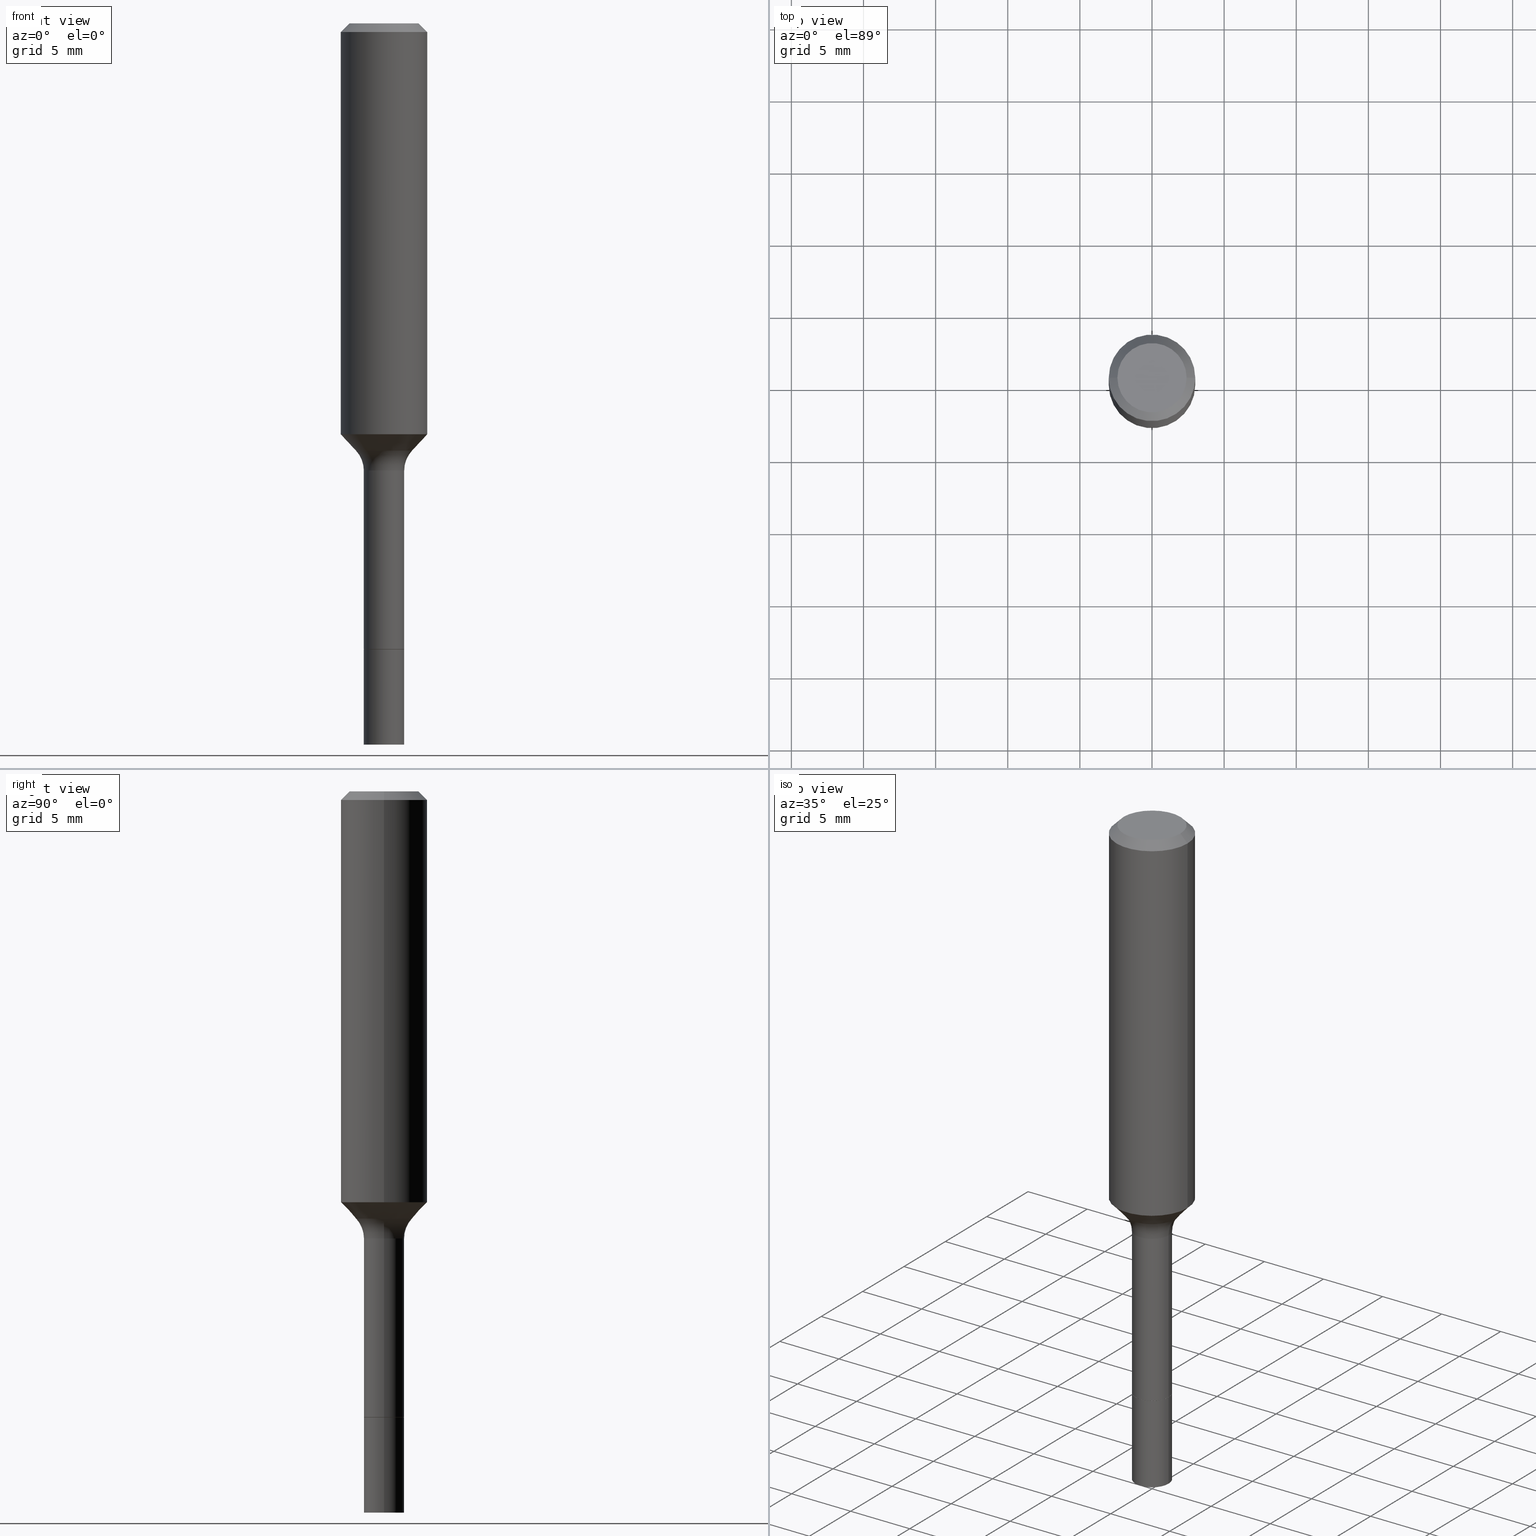
[diagram: canonical four-view strip — front | top / right | iso, engineering-drawing reading convention]
A machine part, canonical four-view strip (front | top / right | iso — engineering-drawing reading convention). The complete STEP part file that produces these views, byte-faithful:
ISO-10303-21;
HEADER;
FILE_DESCRIPTION (( 'STEP AP203' ),
    '1' );
FILE_NAME ('67073.STEP',
    '2025-04-01T15:27:35',
    ( '' ),
    ( '' ),
    'SwSTEP 2.0',
    'SolidWorks 2024',
    '' );
FILE_SCHEMA (( 'CONFIG_CONTROL_DESIGN' ));
ENDSEC;

DATA;
#1 = CARTESIAN_POINT ( 'NONE',  ( 0.000000000000000000, 0.000000000000000000, 0.000000000000000000 ) ) ;
#2 = AXIS2_PLACEMENT_3D ( 'NONE', #258, #273, #358 ) ;
#3 = CALENDAR_DATE ( 2025, 1, 4 ) ;
#4 = EDGE_CURVE ( 'NONE', #175, #490, #143, .T. ) ;
#5 = CARTESIAN_POINT ( 'NONE',  ( 0.1350999999999999424, -5.204751231813473477E-15, -1.220499999999999918 ) ) ;
#6 = VERTEX_POINT ( 'NONE', #434 ) ;
#7 = APPROVAL_DATE_TIME ( #371, #493 ) ;
#8 = FACE_OUTER_BOUND ( 'NONE', #246, .T. ) ;
#9 = ORIENTED_EDGE ( 'NONE', *, *, #435, .T. ) ;
#10 = PERSON_AND_ORGANIZATION ( #228, #318 ) ;
#11 = CARTESIAN_POINT ( 'NONE',  ( -0.1180999999999999966, -1.159805774525281826E-15, -0.02362000000000014435 ) ) ;
#12 = EDGE_LOOP ( 'NONE', ( #417, #156, #494, #508 ) ) ;
#13 = DIRECTION ( 'NONE',  ( -2.445468806185136877E-29, 3.491481338843145188E-15, 1.000000000000000000 ) ) ;
#14 = VECTOR ( 'NONE', #181, 39.37007874015748854 ) ;
#15 = ADVANCED_FACE ( 'NONE', ( #431 ), #340, .T. ) ;
#16 = ORIENTED_EDGE ( 'NONE', *, *, #489, .F. ) ;
#17 = DIRECTION ( 'NONE',  ( 1.000000000000000000, -6.982962677686269077E-15, 0.000000000000000000 ) ) ;
#18 = ORIENTED_EDGE ( 'NONE', *, *, #392, .T. ) ;
#19 = CARTESIAN_POINT ( 'NONE',  ( 0.07659170387046630724, -4.605695219823535710E-15, -1.165940131194999951 ) ) ;
#20 = APPLICATION_CONTEXT ( 'configuration controlled 3d designs of mechanical parts and assemblies' ) ;
#21 = VERTEX_POINT ( 'NONE', #271 ) ;
#22 = LINE ( 'NONE', #220, #244 ) ;
#23 = CIRCLE ( 'NONE', #395, 0.1180999999999999966 ) ;
#24 = CYLINDRICAL_SURFACE ( 'NONE', #92, 0.05509999999999998233 ) ;
#25 = CARTESIAN_POINT ( 'NONE',  ( 0.05510000000000006559, -6.349957110954028728E-15, -1.708500000000000130 ) ) ;
#26 = CARTESIAN_POINT ( 'NONE',  ( 0.1181000000000001354, -4.740132593927196007E-15, -1.121427933219249384 ) ) ;
#27 = DIRECTION ( 'NONE',  ( -2.445468806185136597E-29, 3.491481338843145583E-15, 1.000000000000000000 ) ) ;
#28 = AXIS2_PLACEMENT_3D ( 'NONE', #495, #363, #126 ) ;
#29 = ORIENTED_EDGE ( 'NONE', *, *, #359, .T. ) ;
#30 = EDGE_CURVE ( 'NONE', #211, #6, #63, .T. ) ;
#31 = CARTESIAN_POINT ( 'NONE',  ( 0.05510000000000012804, -7.257742259053245293E-15, -1.968500000000000139 ) ) ;
#32 = DIRECTION ( 'NONE',  ( -2.445468806185136597E-29, 3.491481338843145583E-15, 1.000000000000000000 ) ) ;
#33 = CIRCLE ( 'NONE', #64, 0.09447999999999998066 ) ;
#34 = PERSON_AND_ORGANIZATION ( #228, #318 ) ;
#35 = CARTESIAN_POINT ( 'NONE',  ( -0.05460000000000000270, -5.577239533688498991E-15, -1.708499999999999908 ) ) ;
#36 = APPROVAL_DATE_TIME ( #393, #128 ) ;
#37 = AXIS2_PLACEMENT_3D ( 'NONE', #241, #279, #251 ) ;
#38 = VECTOR ( 'NONE', #430, 39.37007874015748143 ) ;
#39 = ORIENTED_EDGE ( 'NONE', *, *, #208, .F. ) ;
#40 = AXIS2_PLACEMENT_3D ( 'NONE', #5, #237, #283 ) ;
#41 = EDGE_CURVE ( 'NONE', #169, #172, #444, .T. ) ;
#42 = LINE ( 'NONE', #409, #455 ) ;
#43 = CONICAL_SURFACE ( 'NONE', #451, 0.05460000000000000270, 0.7853981633978239785 ) ;
#44 = APPROVAL_STATUS ( 'not_yet_approved' ) ;
#45 = DIRECTION ( 'NONE',  ( 1.000000000000000000, -6.982962677686266711E-15, 0.000000000000000000 ) ) ;
#46 = ORIENTED_EDGE ( 'NONE', *, *, #467, .F. ) ;
#47 = EDGE_CURVE ( 'NONE', #211, #483, #472, .T. ) ;
#48 = DIRECTION ( 'NONE',  ( 0.7071067811865460184, -7.319954787623251312E-15, -0.7071067811865490160 ) ) ;
#49 = EDGE_LOOP ( 'NONE', ( #121, #203 ) ) ;
#50 = CALENDAR_DATE ( 2025, 1, 4 ) ;
#51 = FACE_OUTER_BOUND ( 'NONE', #94, .T. ) ;
#52 = DIRECTION ( 'NONE',  ( -2.445468806185136597E-29, 3.491481338843145583E-15, 1.000000000000000000 ) ) ;
#53 = AXIS2_PLACEMENT_3D ( 'NONE', #1, #479, #113 ) ;
#54 = ORIENTED_EDGE ( 'NONE', *, *, #41, .F. ) ;
#55 = CARTESIAN_POINT ( 'NONE',  ( 2.742417029072343247E-29, -3.915444701692446956E-15, -1.121427933219249384 ) ) ;
#56 = VERTEX_POINT ( 'NONE', #26 ) ;
#57 = ADVANCED_FACE ( 'NONE', ( #60 ), #381, .T. ) ;
#58 = CIRCLE ( 'NONE', #360, 0.05510000000000012804 ) ;
#59 = DIRECTION ( 'NONE',  ( -2.445468806185136597E-29, 3.491481338843145583E-15, 1.000000000000000000 ) ) ;
#60 = FACE_OUTER_BOUND ( 'NONE', #454, .T. ) ;
#61 = ADVANCED_FACE ( 'NONE', ( #378 ), #24, .T. ) ;
#62 = LINE ( 'NONE', #140, #190 ) ;
#63 = CIRCLE ( 'NONE', #147, 0.07659170387046630724 ) ;
#64 = AXIS2_PLACEMENT_3D ( 'NONE', #350, #73, #278 ) ;
#65 = EDGE_LOOP ( 'NONE', ( #199, #85, #426, #420 ) ) ;
#66 = MANIFOLD_SOLID_BREP ( 'Body-Move/Copy2[1]', #263 ) ;
#67 = LINE ( 'NONE', #380, #486 ) ;
#68 = LOCAL_TIME ( 11, 27, 35.00000000000000000, #327 ) ;
#69 = VERTEX_POINT ( 'NONE', #261 ) ;
#70 = DIRECTION ( 'NONE',  ( -1.000000000000000000, 7.105427357601001859E-15, 0.000000000000000000 ) ) ;
#71 = CIRCLE ( 'NONE', #503, 0.1180999999999999966 ) ;
#72 = DIRECTION ( 'NONE',  ( 1.000000000000000000, -6.982962677686265133E-15, 0.000000000000000000 ) ) ;
#73 = DIRECTION ( 'NONE',  ( -2.445468806185136597E-29, 3.491481338843145583E-15, 1.000000000000000000 ) ) ;
#74 = ADVANCED_FACE ( 'NONE', ( #268 ), #349, .F. ) ;
#75 = FACE_OUTER_BOUND ( 'NONE', #461, .T. ) ;
#76 = APPLICATION_PROTOCOL_DEFINITION ( 'international standard', 'config_control_design', 1994, #227 ) ;
#77 = DIRECTION ( 'NONE',  ( -2.445468806185136597E-29, 3.491481338843145583E-15, 1.000000000000000000 ) ) ;
#78 = CONICAL_SURFACE ( 'NONE', #382, 0.07659170387046630724, 0.7504915783575636379 ) ;
#79 = ORIENTED_EDGE ( 'NONE', *, *, #312, .T. ) ;
#80 = DIRECTION ( 'NONE',  ( 2.438088387897960049E-29, -3.491481338843145188E-15, -1.000000000000000000 ) ) ;
#81 = CC_DESIGN_PERSON_AND_ORGANIZATION_ASSIGNMENT ( #413, #125, ( #86 ) ) ;
#82 = AXIS2_PLACEMENT_3D ( 'NONE', #151, #311, #160 ) ;
#83 = APPROVAL_DATE_TIME ( #361, #180 ) ;
#84 = DIRECTION ( 'NONE',  ( 1.000000000000000000, -6.982962677686258822E-15, 0.000000000000000000 ) ) ;
#85 = ORIENTED_EDGE ( 'NONE', *, *, #259, .T. ) ;
#86 = PRODUCT_DEFINITION_FORMATION_WITH_SPECIFIED_SOURCE ( 'ANY', '', #304, .NOT_KNOWN. ) ;
#87 = COORDINATED_UNIVERSAL_TIME_OFFSET ( 5, 0, .BEHIND. ) ;
#88 = DIRECTION ( 'NONE',  ( -1.000000000000000000, 6.982962677686265922E-15, -4.876176775795935793E-29 ) ) ;
#89 = ORIENTED_EDGE ( 'NONE', *, *, #176, .F. ) ;
#90 = DIRECTION ( 'NONE',  ( -2.445468806185136877E-29, 3.491481338843145188E-15, 1.000000000000000000 ) ) ;
#91 = ORIENTED_EDGE ( 'NONE', *, *, #4, .T. ) ;
#92 = AXIS2_PLACEMENT_3D ( 'NONE', #308, #185, #342 ) ;
#93 = DIRECTION ( 'NONE',  ( -2.445468806185136597E-29, 3.491481338843145583E-15, 1.000000000000000000 ) ) ;
#94 = EDGE_LOOP ( 'NONE', ( #179, #91, #375, #448 ) ) ;
#95 = DIRECTION ( 'NONE',  ( 1.000000000000000000, -6.982962677686263555E-15, 0.000000000000000000 ) ) ;
#96 = CIRCLE ( 'NONE', #194, 0.05510000000000000314 ) ;
#97 = ORIENTED_EDGE ( 'NONE', *, *, #498, .F. ) ;
#98 = DIRECTION ( 'NONE',  ( -0.7071067811865460184, 2.468850131082241283E-15, -0.7071067811865490160 ) ) ;
#99 = ORIENTED_EDGE ( 'NONE', *, *, #498, .T. ) ;
#100 = AXIS2_PLACEMENT_3D ( 'NONE', #178, #198, #166 ) ;
#101 = DIRECTION ( 'NONE',  ( 0.7071067811868130271, -2.468850131085038979E-15, 0.7071067811862817853 ) ) ;
#102 = EDGE_LOOP ( 'NONE', ( #39, #516 ) ) ;
#103 = DIRECTION ( 'NONE',  ( -2.445468806185136597E-29, 3.491481338843145583E-15, 1.000000000000000000 ) ) ;
#104 = AXIS2_PLACEMENT_3D ( 'NONE', #260, #425, #216 ) ;
#105 = ORIENTED_EDGE ( 'NONE', *, *, #429, .T. ) ;
#106 = CARTESIAN_POINT ( 'NONE',  ( 4.178083455367305580E-29, -5.965195867413513564E-15, -1.708499999999999908 ) ) ;
#107 = DIRECTION ( 'NONE',  ( 1.000000000000000000, -6.982962677686266711E-15, 4.876176775795935793E-29 ) ) ;
#108 = CONICAL_SURFACE ( 'NONE', #428, 0.1180999999999999966, 0.7853981633974461696 ) ;
#109 = LENGTH_MEASURE_WITH_UNIT ( LENGTH_MEASURE( 0.02539999999999999897 ), #115 );
#110 = DIRECTION ( 'NONE',  ( -2.445468806185136597E-29, 3.491481338843145583E-15, 1.000000000000000000 ) ) ;
#111 = EDGE_CURVE ( 'NONE', #291, #187, #465, .T. ) ;
#112 = LOCAL_TIME ( 11, 27, 35.00000000000000000, #517 ) ;
#113 = DIRECTION ( 'NONE',  ( 1.000000000000000000, 0.000000000000000000, 0.000000000000000000 ) ) ;
#114 = ADVANCED_FACE ( 'NONE', ( #391 ), #398, .T. ) ;
#115 =( LENGTH_UNIT ( ) NAMED_UNIT ( * ) SI_UNIT ( $, .METRE. ) );
#116 = CIRCLE ( 'NONE', #104, 0.05510000000000000314 ) ;
#117 = DIRECTION ( 'NONE',  ( 2.445468806185136597E-29, -3.491481338843145583E-15, -1.000000000000000000 ) ) ;
#118 = PERSON_AND_ORGANIZATION ( #228, #318 ) ;
#119 = FACE_OUTER_BOUND ( 'NONE', #65, .T. ) ;
#120 = AXIS2_PLACEMENT_3D ( 'NONE', #450, #117, #331 ) ;
#121 = ORIENTED_EDGE ( 'NONE', *, *, #514, .T. ) ;
#122 = CARTESIAN_POINT ( 'NONE',  ( 0.05510000000000000314, -6.349957110954028728E-15, -1.708500000000000130 ) ) ;
#123 = EDGE_CURVE ( 'NONE', #69, #172, #275, .T. ) ;
#124 = CIRCLE ( 'NONE', #347, 0.05509999999999994763 ) ;
#125 = PERSON_AND_ORGANIZATION_ROLE ( 'design_supplier' ) ;
#126 = DIRECTION ( 'NONE',  ( 1.000000000000000000, -6.982962677686263555E-15, 0.000000000000000000 ) ) ;
#127 = ORIENTED_EDGE ( 'NONE', *, *, #226, .T. ) ;
#128 = APPROVAL ( #192, 'UNSPECIFIED' ) ;
#129 = DIRECTION ( 'NONE',  ( -2.438088387897960049E-29, 3.491481338843145188E-15, 1.000000000000000000 ) ) ;
#130 = ORIENTED_EDGE ( 'NONE', *, *, #317, .F. ) ;
#131 = AXIS2_PLACEMENT_3D ( 'NONE', #368, #129, #289 ) ;
#132 = ADVANCED_FACE ( 'NONE', ( #75 ), #155, .T. ) ;
#133 = DIRECTION ( 'NONE',  ( 7.105427357601001859E-15, 1.000000000000000000, -3.491481338843145583E-15 ) ) ;
#134 = VERTEX_POINT ( 'NONE', #164 ) ;
#135 = DESIGN_CONTEXT ( 'detailed design', #20, 'design' ) ;
#136 = DIRECTION ( 'NONE',  ( -2.445468806185136597E-29, 3.491481338843145583E-15, 1.000000000000000000 ) ) ;
#137 = CARTESIAN_POINT ( 'NONE',  ( -0.07659170387046630724, -3.526641422229185423E-15, -1.165940131194999951 ) ) ;
#138 = LINE ( 'NONE', #257, #264 ) ;
#139 = DIRECTION ( 'NONE',  ( -0.6819983600624998088, 7.399397606724291309E-15, 0.7313537016191691276 ) ) ;
#140 = CARTESIAN_POINT ( 'NONE',  ( -0.1180999999999999966, 7.422191030112725094E-16, -0.02362000000000014435 ) ) ;
#141 = ORIENTED_EDGE ( 'NONE', *, *, #369, .F. ) ;
#142 = FACE_OUTER_BOUND ( 'NONE', #145, .T. ) ;
#143 = CIRCLE ( 'NONE', #285, 0.05510000000000012804 ) ;
#144 = AXIS2_PLACEMENT_3D ( 'NONE', #432, #133, #70 ) ;
#145 = EDGE_LOOP ( 'NONE', ( #16, #332, #242, #18 ) ) ;
#146 = ORIENTED_EDGE ( 'NONE', *, *, #30, .F. ) ;
#147 = AXIS2_PLACEMENT_3D ( 'NONE', #389, #32, #423 ) ;
#148 = PRODUCT_DEFINITION_SHAPE ( 'NONE', 'NONE',  #460 ) ;
#149 = CALENDAR_DATE ( 2025, 1, 4 ) ;
#150 = DIRECTION ( 'NONE',  ( 1.000000000000000000, -6.982962677686265133E-15, 0.000000000000000000 ) ) ;
#151 = CARTESIAN_POINT ( 'NONE',  ( 4.813905344975441835E-29, -6.872981015512731707E-15, -1.968500000000000139 ) ) ;
#152 = TOROIDAL_SURFACE ( 'NONE', #253, 0.1350999999999999424, 0.08000000000000001554 ) ;
#153 = ADVANCED_BREP_SHAPE_REPRESENTATION ( '67073', ( #66, #402, #53 ), #513 ) ;
#154 = SECURITY_CLASSIFICATION ( '', '', #161 ) ;
#155 = CYLINDRICAL_SURFACE ( 'NONE', #188, 0.1181000000000000660 ) ;
#156 = ORIENTED_EDGE ( 'NONE', *, *, #424, .T. ) ;
#157 = PRODUCT_RELATED_PRODUCT_CATEGORY ( 'detail', '', ( #304 ) ) ;
#158 = APPROVAL_ROLE ( '' ) ;
#159 = CARTESIAN_POINT ( 'NONE',  ( 7.545787641473140628E-46, -1.077338491108201769E-31, -3.085620075131671975E-17 ) ) ;
#160 = DIRECTION ( 'NONE',  ( -1.000000000000000000, 6.982962677686265922E-15, -4.876176775795935793E-29 ) ) ;
#161 = SECURITY_CLASSIFICATION_LEVEL ( 'unclassified' ) ;
#162 = CYLINDRICAL_SURFACE ( 'NONE', #222, 0.05510000000000006559 ) ;
#163 = LOCAL_TIME ( 11, 27, 35.00000000000000000, #196 ) ;
#164 = CARTESIAN_POINT ( 'NONE',  ( -0.09447999999999998066, 7.009847083995354710E-16, -3.085620075132147757E-17 ) ) ;
#165 = EDGE_LOOP ( 'NONE', ( #284, #506 ) ) ;
#166 = DIRECTION ( 'NONE',  ( 1.000000000000000000, -6.982962677686261977E-15, 0.000000000000000000 ) ) ;
#167 = EDGE_CURVE ( 'NONE', #510, #69, #229, .T. ) ;
#168 = AXIS2_PLACEMENT_3D ( 'NONE', #213, #295, #463 ) ;
#169 = VERTEX_POINT ( 'NONE', #233 ) ;
#170 = CALENDAR_DATE ( 2025, 1, 4 ) ;
#171 = CYLINDRICAL_SURFACE ( 'NONE', #480, 0.05510000000000006559 ) ;
#172 = VERTEX_POINT ( 'NONE', #230 ) ;
#173 = AXIS2_PLACEMENT_3D ( 'NONE', #55, #343, #339 ) ;
#174 = CARTESIAN_POINT ( 'NONE',  ( 2.742417029072343247E-29, -3.915444701692446956E-15, -1.121427933219249384 ) ) ;
#175 = VERTEX_POINT ( 'NONE', #277 ) ;
#176 = EDGE_CURVE ( 'NONE', #300, #21, #71, .T. ) ;
#177 = AXIS2_PLACEMENT_3D ( 'NONE', #344, #221, #72 ) ;
#178 = CARTESIAN_POINT ( 'NONE',  ( 2.851270220716778580E-29, -4.070858210275671756E-15, -1.165940131194999951 ) ) ;
#179 = ORIENTED_EDGE ( 'NONE', *, *, #424, .F. ) ;
#180 = APPROVAL ( #449, 'UNSPECIFIED' ) ;
#181 = DIRECTION ( 'NONE',  ( 0.6819983600624998088, -2.208861293262489214E-15, 0.7313537016191691276 ) ) ;
#182 = ORIENTED_EDGE ( 'NONE', *, *, #412, .T. ) ;
#183 = DIRECTION ( 'NONE',  ( -2.445468806185136877E-29, 3.491481338843145188E-15, 1.000000000000000000 ) ) ;
#184 = CC_DESIGN_APPROVAL ( #128, ( #460 ) ) ;
#185 = DIRECTION ( 'NONE',  ( -2.445468806185136597E-29, 3.491481338843145583E-15, 1.000000000000000000 ) ) ;
#186 = FACE_OUTER_BOUND ( 'NONE', #410, .T. ) ;
#187 = VERTEX_POINT ( 'NONE', #362 ) ;
#188 = AXIS2_PLACEMENT_3D ( 'NONE', #231, #315, #482 ) ;
#189 = CARTESIAN_POINT ( 'NONE',  ( 4.176860720964213339E-29, -5.963450126744093638E-15, -1.708000000000000185 ) ) ;
#190 = VECTOR ( 'NONE', #98, 39.37007874015748143 ) ;
#191 = CARTESIAN_POINT ( 'NONE',  ( 0.000000000000000000, 0.000000000000000000, 0.000000000000000000 ) ) ;
#192 = APPROVAL_STATUS ( 'not_yet_approved' ) ;
#193 = AXIS2_PLACEMENT_3D ( 'NONE', #281, #93, #500 ) ;
#194 = AXIS2_PLACEMENT_3D ( 'NONE', #223, #511, #468 ) ;
#195 = ORIENTED_EDGE ( 'NONE', *, *, #239, .F. ) ;
#196 = COORDINATED_UNIVERSAL_TIME_OFFSET ( 5, 0, .BEHIND. ) ;
#197 = AXIS2_PLACEMENT_3D ( 'NONE', #191, #385, #107 ) ;
#198 = DIRECTION ( 'NONE',  ( -2.445468806185136597E-29, 3.491481338843145583E-15, 1.000000000000000000 ) ) ;
#199 = ORIENTED_EDGE ( 'NONE', *, *, #200, .F. ) ;
#200 = EDGE_CURVE ( 'NONE', #501, #134, #282, .T. ) ;
#201 = SHAPE_DEFINITION_REPRESENTATION ( #148, #153 ) ;
#202 = DIRECTION ( 'NONE',  ( 2.445468806185136597E-29, -3.491481338843145583E-15, -1.000000000000000000 ) ) ;
#203 = ORIENTED_EDGE ( 'NONE', *, *, #200, .T. ) ;
#204 = CC_DESIGN_DATE_AND_TIME_ASSIGNMENT ( #456, #484, ( #460 ) ) ;
#205 = FACE_OUTER_BOUND ( 'NONE', #505, .T. ) ;
#206 = ORIENTED_EDGE ( 'NONE', *, *, #412, .F. ) ;
#207 = DIRECTION ( 'NONE',  ( -2.445468806185136597E-29, 3.491481338843145583E-15, 1.000000000000000000 ) ) ;
#208 = EDGE_CURVE ( 'NONE', #490, #175, #58, .T. ) ;
#209 = EDGE_LOOP ( 'NONE', ( #249, #452, #99, #130 ) ) ;
#210 = FACE_OUTER_BOUND ( 'NONE', #466, .T. ) ;
#211 = VERTEX_POINT ( 'NONE', #405 ) ;
#212 = LINE ( 'NONE', #19, #14 ) ;
#213 = CARTESIAN_POINT ( 'NONE',  ( 3.772893820736570314E-46, -5.386692455541008845E-32, -1.542810037565835988E-17 ) ) ;
#214 = VECTOR ( 'NONE', #438, 39.37007874015748854 ) ;
#215 = VERTEX_POINT ( 'NONE', #443 ) ;
#216 = DIRECTION ( 'NONE',  ( 1.000000000000000000, -6.982962677686274599E-15, 0.000000000000000000 ) ) ;
#217 = APPROVAL_PERSON_ORGANIZATION ( #118, #180, #158 ) ;
#218 = EDGE_LOOP ( 'NONE', ( #442, #127, #364, #206 ) ) ;
#219 = CC_DESIGN_SECURITY_CLASSIFICATION ( #154, ( #86 ) ) ;
#220 = CARTESIAN_POINT ( 'NONE',  ( 0.05460000000000000270, -6.346465629615183354E-15, -1.708499999999999908 ) ) ;
#221 = DIRECTION ( 'NONE',  ( -2.445468806185136597E-29, 3.491481338843145583E-15, 1.000000000000000000 ) ) ;
#222 = AXIS2_PLACEMENT_3D ( 'NONE', #492, #321, #488 ) ;
#223 = CARTESIAN_POINT ( 'NONE',  ( 4.178083455367306140E-29, -5.965195867413514353E-15, -1.708500000000000130 ) ) ;
#224 = DIRECTION ( 'NONE',  ( 1.000000000000000000, -6.982962677686258822E-15, 0.000000000000000000 ) ) ;
#225 = ADVANCED_FACE ( 'NONE', ( #366 ), #446, .F. ) ;
#226 = EDGE_CURVE ( 'NONE', #172, #215, #374, .T. ) ;
#227 = APPLICATION_CONTEXT ( 'configuration controlled 3d designs of mechanical parts and assemblies' ) ;
#228 = PERSON ( 'UNSPECIFIED', 'UNSPECIFIED', 'UNSPECIFIED', ('UNSPECIFIED'), ('UNSPECIFIED'), ('UNSPECIFIED') ) ;
#229 = CIRCLE ( 'NONE', #309, 0.05460000000000000270 ) ;
#230 = CARTESIAN_POINT ( 'NONE',  ( -0.05510000000000000314, -4.720892502997260862E-15, -1.708000000000000185 ) ) ;
#231 = CARTESIAN_POINT ( 'NONE',  ( 0.000000000000000000, 0.000000000000000000, 0.000000000000000000 ) ) ;
#232 = PERSON_AND_ORGANIZATION_ROLE ( 'design_owner' ) ;
#233 = CARTESIAN_POINT ( 'NONE',  ( 0.05510000000000000314, -6.348211370284607224E-15, -1.708000000000000185 ) ) ;
#234 = CIRCLE ( 'NONE', #144, 0.08000000000000002942 ) ;
#235 = MECHANICAL_CONTEXT ( 'NONE', #227, 'mechanical' ) ;
#236 = ORIENTED_EDGE ( 'NONE', *, *, #514, .F. ) ;
#237 = DIRECTION ( 'NONE',  ( -6.982962677686266711E-15, -1.000000000000000000, 3.491481338843145583E-15 ) ) ;
#238 = CIRCLE ( 'NONE', #313, 0.1181000000000001354 ) ;
#239 = EDGE_CURVE ( 'NONE', #6, #497, #474, .T. ) ;
#240 = PERSON_AND_ORGANIZATION ( #228, #318 ) ;
#241 = CARTESIAN_POINT ( 'NONE',  ( 0.000000000000000000, 0.000000000000000000, 0.000000000000000000 ) ) ;
#242 = ORIENTED_EDGE ( 'NONE', *, *, #239, .T. ) ;
#243 = ADVANCED_FACE ( 'NONE', ( #8 ), #269, .T. ) ;
#244 = VECTOR ( 'NONE', #101, 39.37007874015748854 ) ;
#245 = CARTESIAN_POINT ( 'NONE',  ( 4.178083455367306140E-29, -5.965195867413514353E-15, -1.708500000000000130 ) ) ;
#246 = EDGE_LOOP ( 'NONE', ( #305, #236, #334, #288 ) ) ;
#247 = CARTESIAN_POINT ( 'NONE',  ( -0.05509999999999998233, 3.915090474038150768E-16, -2.710333234730452079E-30 ) ) ;
#248 = CIRCLE ( 'NONE', #28, 0.05509999999999994763 ) ;
#249 = ORIENTED_EDGE ( 'NONE', *, *, #47, .F. ) ;
#250 = DATE_TIME_ROLE ( 'classification_date' ) ;
#251 = DIRECTION ( 'NONE',  ( 1.000000000000000000, -6.982962677686266711E-15, 4.876176775795936353E-29 ) ) ;
#252 = ORIENTED_EDGE ( 'NONE', *, *, #317, .T. ) ;
#253 = AXIS2_PLACEMENT_3D ( 'NONE', #504, #136, #296 ) ;
#254 = CARTESIAN_POINT ( 'NONE',  ( 2.984694677948959472E-29, -4.261352974058059028E-15, -1.220499999999999918 ) ) ;
#255 = ORIENTED_EDGE ( 'NONE', *, *, #447, .T. ) ;
#256 = UNCERTAINTY_MEASURE_WITH_UNIT (LENGTH_MEASURE( 1.000000000000000082E-05 ), #272, 'distance_accuracy_value', 'NONE');
#257 = CARTESIAN_POINT ( 'NONE',  ( -0.1181000000000000660, 8.391509709326787887E-16, -5.809262341591047287E-30 ) ) ;
#258 = CARTESIAN_POINT ( 'NONE',  ( 4.178083455367306140E-29, -5.965195867413514353E-15, -1.708500000000000130 ) ) ;
#259 = EDGE_CURVE ( 'NONE', #501, #21, #42, .T. ) ;
#260 = CARTESIAN_POINT ( 'NONE',  ( 4.176860720964213339E-29, -5.963450126744093638E-15, -1.708000000000000185 ) ) ;
#261 = CARTESIAN_POINT ( 'NONE',  ( -0.05460000000000000270, -5.574590306514388579E-15, -1.708499999999999908 ) ) ;
#262 = LINE ( 'NONE', #294, #441 ) ;
#263 = CLOSED_SHELL ( 'NONE', ( #325, #114, #301, #225 ) ) ;
#264 = VECTOR ( 'NONE', #459, 39.37007874015748143 ) ;
#265 = ORIENTED_EDGE ( 'NONE', *, *, #123, .F. ) ;
#266 = DIRECTION ( 'NONE',  ( 1.000000000000000000, -6.982962677686266711E-15, 0.000000000000000000 ) ) ;
#267 = ADVANCED_FACE ( 'NONE', ( #205 ), #422, .F. ) ;
#268 = FACE_OUTER_BOUND ( 'NONE', #49, .T. ) ;
#269 = CONICAL_SURFACE ( 'NONE', #120, 0.1180999999999999966, 0.7853981633974461696 ) ;
#270 = PERSON_AND_ORGANIZATION ( #228, #318 ) ;
#271 = CARTESIAN_POINT ( 'NONE',  ( 0.1180999999999999966, -9.071566814582237199E-16, -0.02362000000000014435 ) ) ;
#272 =( CONVERSION_BASED_UNIT ( 'INCH', #109 ) LENGTH_UNIT ( ) NAMED_UNIT ( #481 ) );
#273 = DIRECTION ( 'NONE',  ( -2.445468806185136597E-29, 3.491481338843145583E-15, 1.000000000000000000 ) ) ;
#274 =( NAMED_UNIT ( * ) SI_UNIT ( $, .STERADIAN. ) SOLID_ANGLE_UNIT ( ) );
#275 = LINE ( 'NONE', #35, #214 ) ;
#276 = ADVANCED_FACE ( 'NONE', ( #453 ), #414, .F. ) ;
#277 = CARTESIAN_POINT ( 'NONE',  ( -0.05510000000000012804, -6.027579394059307164E-15, -1.968500000000000139 ) ) ;
#278 = DIRECTION ( 'NONE',  ( 1.000000000000000000, -6.982962677686267499E-15, 4.875432709231658792E-29 ) ) ;
#279 = DIRECTION ( 'NONE',  ( -2.445468806185136597E-29, 3.491481338843145583E-15, 1.000000000000000000 ) ) ;
#280 = PERSON_AND_ORGANIZATION_ROLE ( 'creator' ) ;
#281 = CARTESIAN_POINT ( 'NONE',  ( 2.984694677948959472E-29, -4.261352974058059028E-15, -1.220499999999999918 ) ) ;
#282 = CIRCLE ( 'NONE', #377, 0.09447999999999998066 ) ;
#283 = DIRECTION ( 'NONE',  ( 1.000000000000000000, -6.982962677686269077E-15, 0.000000000000000000 ) ) ;
#284 = ORIENTED_EDGE ( 'NONE', *, *, #111, .T. ) ;
#285 = AXIS2_PLACEMENT_3D ( 'NONE', #475, #110, #224 ) ;
#286 = CC_DESIGN_APPROVAL ( #180, ( #86 ) ) ;
#287 = ADVANCED_FACE ( 'NONE', ( #210 ), #457, .T. ) ;
#288 = ORIENTED_EDGE ( 'NONE', *, *, #176, .T. ) ;
#289 = DIRECTION ( 'NONE',  ( 1.000000000000000000, -6.982962677686265922E-15, 4.876176775795935793E-29 ) ) ;
#290 = AXIS2_PLACEMENT_3D ( 'NONE', #189, #346, #512 ) ;
#291 = VERTEX_POINT ( 'NONE', #122 ) ;
#292 = DIRECTION ( 'NONE',  ( -2.445468806185136597E-29, 3.491481338843145583E-15, 1.000000000000000000 ) ) ;
#293 = ORIENTED_EDGE ( 'NONE', *, *, #306, .T. ) ;
#294 = CARTESIAN_POINT ( 'NONE',  ( 0.05509999999999998233, -3.847612435405131916E-16, 2.686773403463559616E-30 ) ) ;
#295 = DIRECTION ( 'NONE',  ( 2.438088387897960049E-29, -3.491481338843145188E-15, -1.000000000000000000 ) ) ;
#296 = DIRECTION ( 'NONE',  ( 1.000000000000000000, -6.982962677686264344E-15, 4.883557194083112340E-29 ) ) ;
#297 = EDGE_CURVE ( 'NONE', #6, #211, #324, .T. ) ;
#298 = ORIENTED_EDGE ( 'NONE', *, *, #359, .F. ) ;
#299 = DIRECTION ( 'NONE',  ( -2.445468806185136877E-29, 3.491481338843145188E-15, 1.000000000000000000 ) ) ;
#300 = VERTEX_POINT ( 'NONE', #11 ) ;
#301 = ADVANCED_FACE ( 'NONE', ( #51 ), #171, .T. ) ;
#302 = LINE ( 'NONE', #25, #38 ) ;
#303 = CLOSED_SHELL ( 'NONE', ( #439, #335, #132, #407, #267, #61, #57, #384, #502, #287, #243, #74, #276, #15 ) ) ;
#304 = PRODUCT ( '67073', '67073', '', ( #235 ) ) ;
#305 = ORIENTED_EDGE ( 'NONE', *, *, #259, .F. ) ;
#306 = EDGE_CURVE ( 'NONE', #56, #21, #416, .T. ) ;
#307 =( NAMED_UNIT ( * ) PLANE_ANGLE_UNIT ( ) SI_UNIT ( $, .RADIAN. ) );
#308 = CARTESIAN_POINT ( 'NONE',  ( 0.000000000000000000, 0.000000000000000000, 0.000000000000000000 ) ) ;
#309 = AXIS2_PLACEMENT_3D ( 'NONE', #473, #515, #150 ) ;
#310 = CONICAL_SURFACE ( 'NONE', #418, 0.07659170387046630724, 0.7504915783575636379 ) ;
#311 = DIRECTION ( 'NONE',  ( 2.438088387897960049E-29, -3.491481338843145188E-15, -1.000000000000000000 ) ) ;
#312 = EDGE_CURVE ( 'NONE', #215, #497, #248, .T. ) ;
#313 = AXIS2_PLACEMENT_3D ( 'NONE', #174, #52, #17 ) ;
#314 = CARTESIAN_POINT ( 'NONE',  ( 2.851270220716778580E-29, -4.070858210275671756E-15, -1.165940131194999951 ) ) ;
#315 = DIRECTION ( 'NONE',  ( -2.445468806185136597E-29, 3.491481338843145583E-15, 1.000000000000000000 ) ) ;
#316 = ORIENTED_EDGE ( 'NONE', *, *, #369, .T. ) ;
#317 = EDGE_CURVE ( 'NONE', #483, #56, #238, .T. ) ;
#318 = ORGANIZATION ( 'UNSPECIFIED', 'UNSPECIFIED', '' ) ;
#319 = CC_DESIGN_DATE_AND_TIME_ASSIGNMENT ( #404, #250, ( #154 ) ) ;
#320 = PERSON_AND_ORGANIZATION_ROLE ( 'classification_officer' ) ;
#321 = DIRECTION ( 'NONE',  ( -2.445468806185136597E-29, 3.491481338843145583E-15, 1.000000000000000000 ) ) ;
#322 = ORIENTED_EDGE ( 'NONE', *, *, #312, .F. ) ;
#323 = CARTESIAN_POINT ( 'NONE',  ( 5.776197320209328408E-31, -8.246878922347560526E-17, -0.02362000000000014435 ) ) ;
#324 = CIRCLE ( 'NONE', #100, 0.07659170387046630724 ) ;
#325 = ADVANCED_FACE ( 'NONE', ( #485 ), #162, .T. ) ;
#326 = EDGE_LOOP ( 'NONE', ( #265, #29, #9, #387 ) ) ;
#327 = COORDINATED_UNIVERSAL_TIME_OFFSET ( 5, 0, .BEHIND. ) ;
#328 = CARTESIAN_POINT ( 'NONE',  ( 4.178083455367306140E-29, -5.965195867413514353E-15, -1.708500000000000130 ) ) ;
#329 = CC_DESIGN_PERSON_AND_ORGANIZATION_ASSIGNMENT ( #10, #320, ( #154 ) ) ;
#330 = ORIENTED_EDGE ( 'NONE', *, *, #297, .T. ) ;
#331 = DIRECTION ( 'NONE',  ( -1.000000000000000000, 6.982962677686266711E-15, 0.000000000000000000 ) ) ;
#332 = ORIENTED_EDGE ( 'NONE', *, *, #297, .F. ) ;
#333 = CARTESIAN_POINT ( 'NONE',  ( 0.05509999999999994763, -4.646114217598571825E-15, -1.220499999999999918 ) ) ;
#334 = ORIENTED_EDGE ( 'NONE', *, *, #477, .T. ) ;
#335 = ADVANCED_FACE ( 'NONE', ( #119 ), #108, .T. ) ;
#336 = CARTESIAN_POINT ( 'NONE',  ( 0.09447999999999998066, -7.704367267948738690E-16, -3.085620075131172158E-17 ) ) ;
#337 = ORIENTED_EDGE ( 'NONE', *, *, #167, .T. ) ;
#338 = APPROVAL_PERSON_ORGANIZATION ( #34, #128, #436 ) ;
#339 = DIRECTION ( 'NONE',  ( 1.000000000000000000, -6.982962677686269077E-15, 0.000000000000000000 ) ) ;
#340 = CONICAL_SURFACE ( 'NONE', #177, 0.05460000000000000270, 0.7853981633978239785 ) ;
#341 = CC_DESIGN_PERSON_AND_ORGANIZATION_ASSIGNMENT ( #270, #232, ( #304 ) ) ;
#342 = DIRECTION ( 'NONE',  ( 1.000000000000000000, -6.982962677686266711E-15, 4.876176775795935793E-29 ) ) ;
#343 = DIRECTION ( 'NONE',  ( -2.445468806185136597E-29, 3.491481338843145583E-15, 1.000000000000000000 ) ) ;
#344 = CARTESIAN_POINT ( 'NONE',  ( 4.178083455367305580E-29, -5.965195867413513564E-15, -1.708499999999999908 ) ) ;
#345 = CARTESIAN_POINT ( 'NONE',  ( 4.178083455367305580E-29, -5.965195867413513564E-15, -1.708499999999999908 ) ) ;
#346 = DIRECTION ( 'NONE',  ( -2.445468806185136597E-29, 3.491481338843145583E-15, 1.000000000000000000 ) ) ;
#347 = AXIS2_PLACEMENT_3D ( 'NONE', #254, #464, #95 ) ;
#348 = DIRECTION ( 'NONE',  ( 1.000000000000000000, -6.982962677686261977E-15, 0.000000000000000000 ) ) ;
#349 = PLANE ( 'NONE',  #168 ) ;
#350 = CARTESIAN_POINT ( 'NONE',  ( 7.545787641473140628E-46, -1.077338491108201769E-31, -3.085620075131671975E-17 ) ) ;
#351 = EDGE_CURVE ( 'NONE', #187, #291, #96, .T. ) ;
#352 = PERSON_AND_ORGANIZATION ( #228, #318 ) ;
#353 = CC_DESIGN_PERSON_AND_ORGANIZATION_ASSIGNMENT ( #240, #280, ( #86 ) ) ;
#354 = AXIS2_PLACEMENT_3D ( 'NONE', #345, #292, #383 ) ;
#355 = ORIENTED_EDGE ( 'NONE', *, *, #47, .T. ) ;
#356 = APPROVAL_PERSON_ORGANIZATION ( #499, #493, #365 ) ;
#357 = DIRECTION ( 'NONE',  ( -2.445468806185136597E-29, 3.491481338843145583E-15, 1.000000000000000000 ) ) ;
#358 = DIRECTION ( 'NONE',  ( 1.000000000000000000, -6.982962677686274599E-15, 0.000000000000000000 ) ) ;
#359 = EDGE_CURVE ( 'NONE', #69, #510, #496, .T. ) ;
#360 = AXIS2_PLACEMENT_3D ( 'NONE', #427, #401, #84 ) ;
#361 = DATE_AND_TIME ( #3, #518 ) ;
#362 = CARTESIAN_POINT ( 'NONE',  ( -0.05510000000000000314, -6.027579394059307953E-15, -1.708500000000000130 ) ) ;
#363 = DIRECTION ( 'NONE',  ( -2.445468806185136597E-29, 3.491481338843145583E-15, 1.000000000000000000 ) ) ;
#364 = ORIENTED_EDGE ( 'NONE', *, *, #392, .F. ) ;
#365 = APPROVAL_ROLE ( '' ) ;
#366 = FACE_OUTER_BOUND ( 'NONE', #165, .T. ) ;
#367 = ORIENTED_EDGE ( 'NONE', *, *, #226, .F. ) ;
#368 = CARTESIAN_POINT ( 'NONE',  ( 1.014731728767789487E-28, 2.583086728145814913E-15, -1.708500000000000130 ) ) ;
#369 = EDGE_CURVE ( 'NONE', #483, #300, #138, .T. ) ;
#370 = EDGE_LOOP ( 'NONE', ( #337, #399, #54, #403 ) ) ;
#371 = DATE_AND_TIME ( #50, #163 ) ;
#372 = CARTESIAN_POINT ( 'NONE',  ( 0.1181000000000000660, -8.246878922347485584E-16, 5.758764772215003944E-30 ) ) ;
#373 = ORIENTED_EDGE ( 'NONE', *, *, #489, .T. ) ;
#374 = LINE ( 'NONE', #247, #433 ) ;
#375 = ORIENTED_EDGE ( 'NONE', *, *, #396, .T. ) ;
#376 = DIRECTION ( 'NONE',  ( -2.445468806185136597E-29, 3.491481338843145583E-15, 1.000000000000000000 ) ) ;
#377 = AXIS2_PLACEMENT_3D ( 'NONE', #159, #103, #394 ) ;
#378 = FACE_OUTER_BOUND ( 'NONE', #218, .T. ) ;
#379 = CC_DESIGN_PERSON_AND_ORGANIZATION_ASSIGNMENT ( #352, #437, ( #460 ) ) ;
#380 = CARTESIAN_POINT ( 'NONE',  ( -0.05510000000000006559, -5.573686820009698881E-15, -1.708500000000000130 ) ) ;
#381 = CYLINDRICAL_SURFACE ( 'NONE', #197, 0.05509999999999998233 ) ;
#382 = AXIS2_PLACEMENT_3D ( 'NONE', #314, #357, #348 ) ;
#383 = DIRECTION ( 'NONE',  ( 1.000000000000000000, -6.982962677686265133E-15, 0.000000000000000000 ) ) ;
#384 = ADVANCED_FACE ( 'NONE', ( #142 ), #152, .F. ) ;
#385 = DIRECTION ( 'NONE',  ( -2.445468806185136597E-29, 3.491481338843145583E-15, 1.000000000000000000 ) ) ;
#386 = FACE_OUTER_BOUND ( 'NONE', #370, .T. ) ;
#387 = ORIENTED_EDGE ( 'NONE', *, *, #447, .F. ) ;
#388 = CARTESIAN_POINT ( 'NONE',  ( -0.1181000000000001354, -3.076293730759767576E-15, -1.121427933219249384 ) ) ;
#389 = CARTESIAN_POINT ( 'NONE',  ( 2.851270220716778580E-29, -4.070858210275671756E-15, -1.165940131194999951 ) ) ;
#390 = APPLICATION_PROTOCOL_DEFINITION ( 'international standard', 'config_control_design', 1994, #20 ) ;
#391 = FACE_OUTER_BOUND ( 'NONE', #102, .T. ) ;
#392 = EDGE_CURVE ( 'NONE', #497, #215, #124, .T. ) ;
#393 = DATE_AND_TIME ( #149, #112 ) ;
#394 = DIRECTION ( 'NONE',  ( 1.000000000000000000, -6.982962677686267499E-15, 4.875432709231658792E-29 ) ) ;
#395 = AXIS2_PLACEMENT_3D ( 'NONE', #509, #376, #266 ) ;
#396 = EDGE_CURVE ( 'NONE', #490, #291, #302, .T. ) ;
#397 = DIRECTION ( 'NONE',  ( 1.000000000000000000, -6.982962677686266711E-15, 0.000000000000000000 ) ) ;
#398 = PLANE ( 'NONE',  #82 ) ;
#399 = ORIENTED_EDGE ( 'NONE', *, *, #123, .T. ) ;
#400 = VECTOR ( 'NONE', #139, 39.37007874015748854 ) ;
#401 = DIRECTION ( 'NONE',  ( -2.445468806185136597E-29, 3.491481338843145583E-15, 1.000000000000000000 ) ) ;
#402 = MANIFOLD_SOLID_BREP ( 'Body-Move/Copy2[2]', #303 ) ;
#403 = ORIENTED_EDGE ( 'NONE', *, *, #435, .F. ) ;
#404 = DATE_AND_TIME ( #170, #68 ) ;
#405 = CARTESIAN_POINT ( 'NONE',  ( -0.07659170387046634887, -3.526641422229185029E-15, -1.165940131194999951 ) ) ;
#406 = ORIENTED_EDGE ( 'NONE', *, *, #167, .F. ) ;
#407 = ADVANCED_FACE ( 'NONE', ( #186 ), #310, .T. ) ;
#408 = CC_DESIGN_APPROVAL ( #493, ( #154 ) ) ;
#409 = CARTESIAN_POINT ( 'NONE',  ( 0.1180999999999999966, -8.926936027602933910E-16, -0.02362000000000014435 ) ) ;
#410 = EDGE_LOOP ( 'NONE', ( #330, #355, #469, #97 ) ) ;
#411 = VECTOR ( 'NONE', #13, 39.37007874015748143 ) ;
#412 = EDGE_CURVE ( 'NONE', #169, #497, #262, .T. ) ;
#413 = PERSON_AND_ORGANIZATION ( #228, #318 ) ;
#414 = PLANE ( 'NONE',  #131 ) ;
#415 = EDGE_LOOP ( 'NONE', ( #406, #298 ) ) ;
#416 = LINE ( 'NONE', #372, #411 ) ;
#417 = ORIENTED_EDGE ( 'NONE', *, *, #208, .T. ) ;
#418 = AXIS2_PLACEMENT_3D ( 'NONE', #421, #59, #419 ) ;
#419 = DIRECTION ( 'NONE',  ( 1.000000000000000000, -6.982962677686261977E-15, 0.000000000000000000 ) ) ;
#420 = ORIENTED_EDGE ( 'NONE', *, *, #477, .F. ) ;
#421 = CARTESIAN_POINT ( 'NONE',  ( 2.851270220716778580E-29, -4.070858210275671756E-15, -1.165940131194999951 ) ) ;
#422 = TOROIDAL_SURFACE ( 'NONE', #193, 0.1350999999999999424, 0.08000000000000001554 ) ;
#423 = DIRECTION ( 'NONE',  ( 1.000000000000000000, -6.982962677686261977E-15, 0.000000000000000000 ) ) ;
#424 = EDGE_CURVE ( 'NONE', #175, #187, #67, .T. ) ;
#425 = DIRECTION ( 'NONE',  ( -2.445468806185136597E-29, 3.491481338843145583E-15, 1.000000000000000000 ) ) ;
#426 = ORIENTED_EDGE ( 'NONE', *, *, #467, .T. ) ;
#427 = CARTESIAN_POINT ( 'NONE',  ( 4.813905344975441835E-29, -6.872981015512731707E-15, -1.968500000000000139 ) ) ;
#428 = AXIS2_PLACEMENT_3D ( 'NONE', #323, #202, #507 ) ;
#429 = EDGE_CURVE ( 'NONE', #56, #483, #470, .T. ) ;
#430 = DIRECTION ( 'NONE',  ( -2.445468806185136877E-29, 3.491481338843145188E-15, 1.000000000000000000 ) ) ;
#431 = FACE_OUTER_BOUND ( 'NONE', #326, .T. ) ;
#432 = CARTESIAN_POINT ( 'NONE',  ( -0.1350999999999999424, -3.301409738046164086E-15, -1.220499999999999918 ) ) ;
#433 = VECTOR ( 'NONE', #90, 39.37007874015748143 ) ;
#434 = CARTESIAN_POINT ( 'NONE',  ( 0.07659170387046634887, -4.605695219823537287E-15, -1.165940131194999951 ) ) ;
#435 = EDGE_CURVE ( 'NONE', #510, #169, #22, .T. ) ;
#436 = APPROVAL_ROLE ( '' ) ;
#437 = PERSON_AND_ORGANIZATION_ROLE ( 'creator' ) ;
#438 = DIRECTION ( 'NONE',  ( -0.7071067811868130271, 7.493145998871311837E-15, 0.7071067811862817853 ) ) ;
#439 = ADVANCED_FACE ( 'NONE', ( #386 ), #43, .T. ) ;
#440 = CARTESIAN_POINT ( 'NONE',  ( 5.776197320209328408E-31, -8.246878922347560526E-17, -0.02362000000000014435 ) ) ;
#441 = VECTOR ( 'NONE', #183, 39.37007874015748143 ) ;
#442 = ORIENTED_EDGE ( 'NONE', *, *, #41, .T. ) ;
#443 = CARTESIAN_POINT ( 'NONE',  ( -0.05509999999999994763, -4.720892502997260862E-15, -1.220499999999999918 ) ) ;
#444 = CIRCLE ( 'NONE', #290, 0.05510000000000000314 ) ;
#445 = CALENDAR_DATE ( 2025, 1, 4 ) ;
#446 = PLANE ( 'NONE',  #491 ) ;
#447 = EDGE_CURVE ( 'NONE', #172, #169, #116, .T. ) ;
#448 = ORIENTED_EDGE ( 'NONE', *, *, #351, .F. ) ;
#449 = APPROVAL_STATUS ( 'not_yet_approved' ) ;
#450 = CARTESIAN_POINT ( 'NONE',  ( 5.776197320209328408E-31, -8.246878922347560526E-17, -0.02362000000000014435 ) ) ;
#451 = AXIS2_PLACEMENT_3D ( 'NONE', #106, #27, #471 ) ;
#452 = ORIENTED_EDGE ( 'NONE', *, *, #30, .T. ) ;
#453 = FACE_OUTER_BOUND ( 'NONE', #415, .T. ) ;
#454 = EDGE_LOOP ( 'NONE', ( #367, #255, #182, #322 ) ) ;
#455 = VECTOR ( 'NONE', #48, 39.37007874015748143 ) ;
#456 = DATE_AND_TIME ( #445, #478 ) ;
#457 = CYLINDRICAL_SURFACE ( 'NONE', #37, 0.1181000000000000660 ) ;
#458 = ORIENTED_EDGE ( 'NONE', *, *, #306, .F. ) ;
#459 = DIRECTION ( 'NONE',  ( -2.445468806185136877E-29, 3.491481338843145188E-15, 1.000000000000000000 ) ) ;
#460 = PRODUCT_DEFINITION ( 'UNKNOWN', '', #86, #135 ) ;
#461 = EDGE_LOOP ( 'NONE', ( #105, #316, #46, #458 ) ) ;
#462 = FACE_OUTER_BOUND ( 'NONE', #209, .T. ) ;
#463 = DIRECTION ( 'NONE',  ( -1.000000000000000000, 6.982962677686265922E-15, -4.876176775795935793E-29 ) ) ;
#464 = DIRECTION ( 'NONE',  ( -2.445468806185136597E-29, 3.491481338843145583E-15, 1.000000000000000000 ) ) ;
#465 = CIRCLE ( 'NONE', #2, 0.05510000000000000314 ) ;
#466 = EDGE_LOOP ( 'NONE', ( #141, #252, #293, #89 ) ) ;
#467 = EDGE_CURVE ( 'NONE', #21, #300, #23, .T. ) ;
#468 = DIRECTION ( 'NONE',  ( 1.000000000000000000, -6.982962677686274599E-15, 0.000000000000000000 ) ) ;
#469 = ORIENTED_EDGE ( 'NONE', *, *, #429, .F. ) ;
#470 = CIRCLE ( 'NONE', #173, 0.1181000000000001354 ) ;
#471 = DIRECTION ( 'NONE',  ( 1.000000000000000000, -6.982962677686265133E-15, 0.000000000000000000 ) ) ;
#472 = LINE ( 'NONE', #137, #400 ) ;
#473 = CARTESIAN_POINT ( 'NONE',  ( 4.178083455367305580E-29, -5.965195867413513564E-15, -1.708499999999999908 ) ) ;
#474 = CIRCLE ( 'NONE', #40, 0.08000000000000002942 ) ;
#475 = CARTESIAN_POINT ( 'NONE',  ( 4.813905344975441835E-29, -6.872981015512731707E-15, -1.968500000000000139 ) ) ;
#476 = CARTESIAN_POINT ( 'NONE',  ( 0.05460000000000000270, -6.346465629615183354E-15, -1.708499999999999908 ) ) ;
#477 = EDGE_CURVE ( 'NONE', #134, #300, #62, .T. ) ;
#478 = LOCAL_TIME ( 11, 27, 35.00000000000000000, #487 ) ;
#479 = DIRECTION ( 'NONE',  ( 0.000000000000000000, 0.000000000000000000, 1.000000000000000000 ) ) ;
#480 = AXIS2_PLACEMENT_3D ( 'NONE', #328, #207, #45 ) ;
#481 = DIMENSIONAL_EXPONENTS ( 1.000000000000000000, 0.000000000000000000, 0.000000000000000000, 0.000000000000000000, 0.000000000000000000, 0.000000000000000000, 0.000000000000000000 ) ;
#482 = DIRECTION ( 'NONE',  ( 1.000000000000000000, -6.982962677686266711E-15, 4.876176775795936353E-29 ) ) ;
#483 = VERTEX_POINT ( 'NONE', #388 ) ;
#484 = DATE_TIME_ROLE ( 'creation_date' ) ;
#485 = FACE_OUTER_BOUND ( 'NONE', #12, .T. ) ;
#486 = VECTOR ( 'NONE', #299, 39.37007874015748143 ) ;
#487 = COORDINATED_UNIVERSAL_TIME_OFFSET ( 5, 0, .BEHIND. ) ;
#488 = DIRECTION ( 'NONE',  ( 1.000000000000000000, -6.982962677686266711E-15, 0.000000000000000000 ) ) ;
#489 = EDGE_CURVE ( 'NONE', #211, #215, #234, .T. ) ;
#490 = VERTEX_POINT ( 'NONE', #31 ) ;
#491 = AXIS2_PLACEMENT_3D ( 'NONE', #245, #80, #88 ) ;
#492 = CARTESIAN_POINT ( 'NONE',  ( 4.178083455367306140E-29, -5.965195867413514353E-15, -1.708500000000000130 ) ) ;
#493 = APPROVAL ( #44, 'UNSPECIFIED' ) ;
#494 = ORIENTED_EDGE ( 'NONE', *, *, #111, .F. ) ;
#495 = CARTESIAN_POINT ( 'NONE',  ( 2.984694677948959472E-29, -4.261352974058059028E-15, -1.220499999999999918 ) ) ;
#496 = CIRCLE ( 'NONE', #354, 0.05460000000000000270 ) ;
#497 = VERTEX_POINT ( 'NONE', #333 ) ;
#498 = EDGE_CURVE ( 'NONE', #6, #56, #212, .T. ) ;
#499 = PERSON_AND_ORGANIZATION ( #228, #318 ) ;
#500 = DIRECTION ( 'NONE',  ( 1.000000000000000000, -6.982962677686264344E-15, 4.883557194083112340E-29 ) ) ;
#501 = VERTEX_POINT ( 'NONE', #336 ) ;
#502 = ADVANCED_FACE ( 'NONE', ( #462 ), #78, .T. ) ;
#503 = AXIS2_PLACEMENT_3D ( 'NONE', #440, #77, #397 ) ;
#504 = CARTESIAN_POINT ( 'NONE',  ( 2.984694677948959472E-29, -4.261352974058059028E-15, -1.220499999999999918 ) ) ;
#505 = EDGE_LOOP ( 'NONE', ( #146, #373, #79, #195 ) ) ;
#506 = ORIENTED_EDGE ( 'NONE', *, *, #351, .T. ) ;
#507 = DIRECTION ( 'NONE',  ( -1.000000000000000000, 6.982962677686266711E-15, 0.000000000000000000 ) ) ;
#508 = ORIENTED_EDGE ( 'NONE', *, *, #396, .F. ) ;
#509 = CARTESIAN_POINT ( 'NONE',  ( 5.776197320209328408E-31, -8.246878922347560526E-17, -0.02362000000000014435 ) ) ;
#510 = VERTEX_POINT ( 'NONE', #476 ) ;
#511 = DIRECTION ( 'NONE',  ( -2.445468806185136597E-29, 3.491481338843145583E-15, 1.000000000000000000 ) ) ;
#512 = DIRECTION ( 'NONE',  ( 1.000000000000000000, -6.982962677686274599E-15, 0.000000000000000000 ) ) ;
#513 =( GEOMETRIC_REPRESENTATION_CONTEXT ( 3 ) GLOBAL_UNCERTAINTY_ASSIGNED_CONTEXT ( ( #256 ) ) GLOBAL_UNIT_ASSIGNED_CONTEXT ( ( #272, #307, #274 ) ) REPRESENTATION_CONTEXT ( 'NONE', 'WORKASPACE' ) );
#514 = EDGE_CURVE ( 'NONE', #134, #501, #33, .T. ) ;
#515 = DIRECTION ( 'NONE',  ( -2.445468806185136597E-29, 3.491481338843145583E-15, 1.000000000000000000 ) ) ;
#516 = ORIENTED_EDGE ( 'NONE', *, *, #4, .F. ) ;
#517 = COORDINATED_UNIVERSAL_TIME_OFFSET ( 5, 0, .BEHIND. ) ;
#518 = LOCAL_TIME ( 11, 27, 35.00000000000000000, #87 ) ;
ENDSEC;
END-ISO-10303-21;
